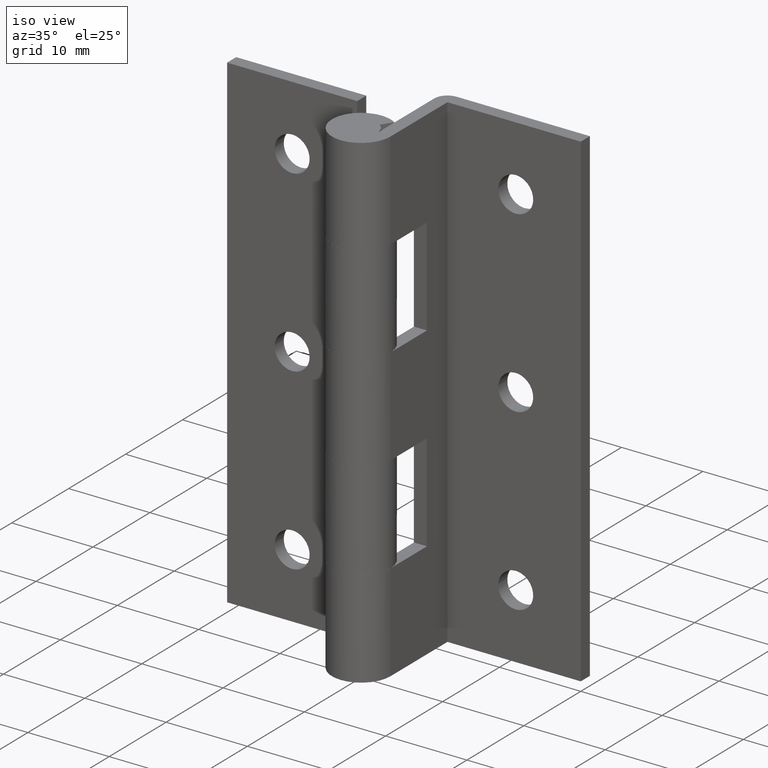
[diagram: clean part render]
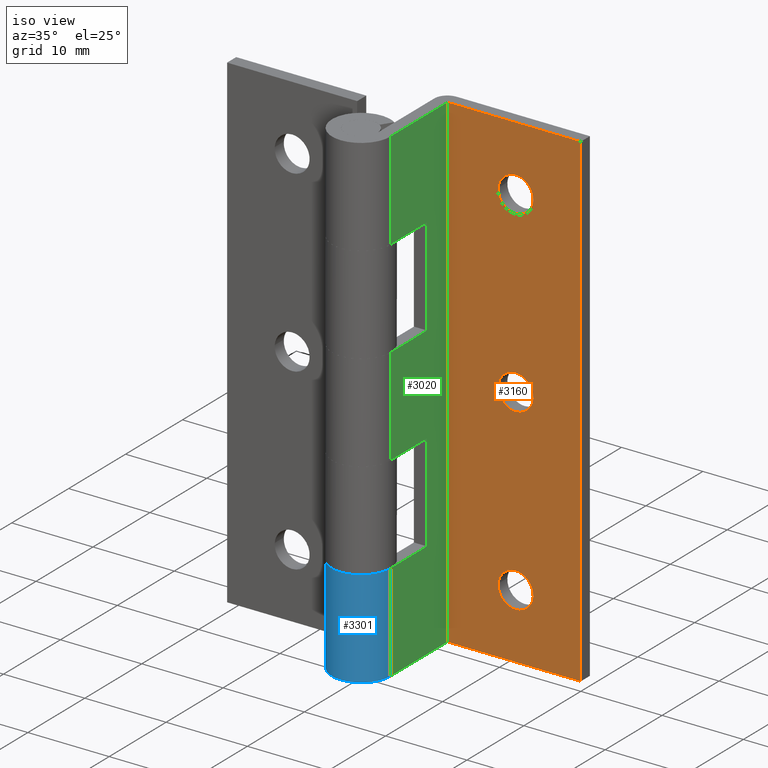
[diagram: same view with three faces highlighted in distinct colors, each labeled with its STEP entity id]
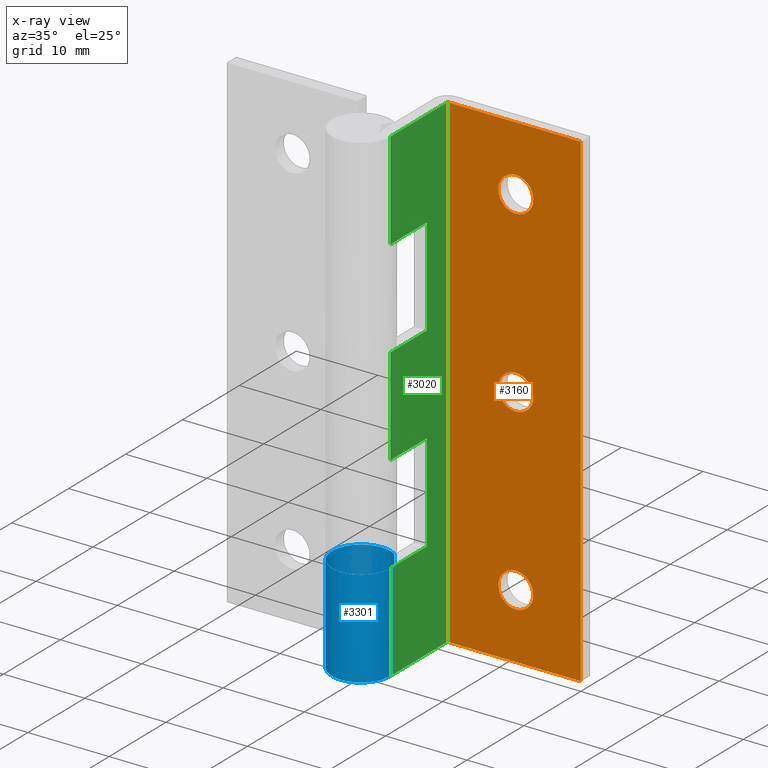
[diagram: x-ray of the same camera — body ghosted, the three highlighted faces saturated]
A machine part, iso view with three faces highlighted in distinct colors.
The next image is the same camera in x-ray (body ghosted, the three faces saturated) — at least one of them is partly hidden behind the body in this view.
Their STEP definitions:

[orange] entity #3160 — the highlighted face is a freeform B-spline surface patch.
#1842=CARTESIAN_POINT('',(12.000008000000101,10.0,54.149999999999999));
#1843=VERTEX_POINT('',#1842);
#1844=CARTESIAN_POINT('',(9.856635732478807,10.0,52.168687055877520));
#1845=VERTEX_POINT('',#1844);
#1846=CARTESIAN_POINT('',(12.000008000000101,10.0,54.149999999999999));
#1847=CARTESIAN_POINT('',(10.012568443051501,10.0,54.149999999999999));
#1848=CARTESIAN_POINT('',(9.856635732478807,9.999999999999998,52.168687055877520));
#1856=(BOUNDED_CURVE()B_SPLINE_CURVE(2,(#1846,#1847,#1848),.UNSPECIFIED.,.F.,.U.)B_SPLINE_CURVE_WITH_KNOTS((3,3),(0.0,0.236331300622745),.UNSPECIFIED.)CURVE()GEOMETRIC_REPRESENTATION_ITEM()RATIONAL_B_SPLINE_CURVE((1.0,0.723120658616938,0.969723356150901))REPRESENTATION_ITEM(''));
#1857=EDGE_CURVE('',#1843,#1845,#1856,.T.);
#1898=CARTESIAN_POINT('',(14.143380267521390,9.999999999999998,51.831312944122480));
#1899=VERTEX_POINT('',#1898);
#1905=CARTESIAN_POINT('',(14.143380267521392,9.999999999999998,51.831312944122480));
#1906=CARTESIAN_POINT('',(14.150008000000101,10.0,51.915526269870561));
#1907=CARTESIAN_POINT('',(14.150008000000099,10.0,52.0));
#1908=CARTESIAN_POINT('',(14.150008000000103,10.0,54.150000000000006));
#1909=CARTESIAN_POINT('',(12.000008000000101,10.0,54.149999999999999));
#1917=(BOUNDED_CURVE()B_SPLINE_CURVE(2,(#1905,#1906,#1907,#1908,#1909),.UNSPECIFIED.,.F.,.U.)B_SPLINE_CURVE_WITH_KNOTS((3,2,3),(0.736331300622745,0.750000000000000,1.0),.UNSPECIFIED.)CURVE()GEOMETRIC_REPRESENTATION_ITEM()RATIONAL_B_SPLINE_CURVE((0.969723356150902,0.983986122569610,1.0,0.707106781186547,1.0))REPRESENTATION_ITEM(''));
#1918=EDGE_CURVE('',#1899,#1843,#1917,.T.);
#1941=CARTESIAN_POINT('',(12.000008000000101,10.0,49.850000000000001));
#1942=VERTEX_POINT('',#1941);
#1943=CARTESIAN_POINT('',(9.856635732478807,10.0,52.168687055877527));
#1944=CARTESIAN_POINT('',(9.850008000000100,10.0,52.084473730129439));
#1945=CARTESIAN_POINT('',(9.850008000000100,10.0,52.0));
#1946=CARTESIAN_POINT('',(9.850008000000100,10.0,49.850000000000009));
#1947=CARTESIAN_POINT('',(12.000008000000101,10.0,49.850000000000001));
#1955=(BOUNDED_CURVE()B_SPLINE_CURVE(2,(#1943,#1944,#1945,#1946,#1947),.UNSPECIFIED.,.F.,.U.)B_SPLINE_CURVE_WITH_KNOTS((3,2,3),(0.236331300622745,0.250000000000000,0.500000000000000),.UNSPECIFIED.)CURVE()GEOMETRIC_REPRESENTATION_ITEM()RATIONAL_B_SPLINE_CURVE((0.969723356150902,0.983986122569610,1.0,0.707106781186547,1.0))REPRESENTATION_ITEM(''));
#1956=EDGE_CURVE('',#1845,#1942,#1955,.T.);
#1958=CARTESIAN_POINT('',(12.000008000000101,10.0,49.850000000000001));
#1959=CARTESIAN_POINT('',(13.987447556948696,10.0,49.850000000000016));
#1960=CARTESIAN_POINT('',(14.143380267521392,9.999999999999998,51.831312944122480));
#1968=(BOUNDED_CURVE()B_SPLINE_CURVE(2,(#1958,#1959,#1960),.UNSPECIFIED.,.F.,.U.)B_SPLINE_CURVE_WITH_KNOTS((3,3),(0.500000000000000,0.736331300622745),.UNSPECIFIED.)CURVE()GEOMETRIC_REPRESENTATION_ITEM()RATIONAL_B_SPLINE_CURVE((1.0,0.723120658616938,0.969723356150901))REPRESENTATION_ITEM(''));
#1969=EDGE_CURVE('',#1942,#1899,#1968,.T.);
#2024=CARTESIAN_POINT('',(12.000008000000101,10.0,32.149999999999999));
#2025=VERTEX_POINT('',#2024);
#2026=CARTESIAN_POINT('',(9.856635732478805,10.0,30.168687055877509));
#2027=VERTEX_POINT('',#2026);
#2028=CARTESIAN_POINT('',(12.000008000000101,10.0,32.149999999999999));
#2029=CARTESIAN_POINT('',(10.012568443051496,10.000000000000002,32.150000000000006));
#2030=CARTESIAN_POINT('',(9.856635732478805,10.0,30.168687055877516));
#2038=(BOUNDED_CURVE()B_SPLINE_CURVE(2,(#2028,#2029,#2030),.UNSPECIFIED.,.F.,.U.)B_SPLINE_CURVE_WITH_KNOTS((3,3),(0.0,0.236331300622746),.UNSPECIFIED.)CURVE()GEOMETRIC_REPRESENTATION_ITEM()RATIONAL_B_SPLINE_CURVE((1.0,0.723120658616937,0.969723356150902))REPRESENTATION_ITEM(''));
#2039=EDGE_CURVE('',#2025,#2027,#2038,.T.);
#2080=CARTESIAN_POINT('',(14.143380267521390,10.0,29.831312944122480));
#2081=VERTEX_POINT('',#2080);
#2087=CARTESIAN_POINT('',(14.143380267521392,10.0,29.831312944122487));
#2088=CARTESIAN_POINT('',(14.150008000000101,10.0,29.915526269870572));
#2089=CARTESIAN_POINT('',(14.150008000000099,10.0,30.0));
#2090=CARTESIAN_POINT('',(14.150008000000103,10.0,32.149999999999999));
#2091=CARTESIAN_POINT('',(12.000008000000101,10.0,32.149999999999999));
#2099=(BOUNDED_CURVE()B_SPLINE_CURVE(2,(#2087,#2088,#2089,#2090,#2091),.UNSPECIFIED.,.F.,.U.)B_SPLINE_CURVE_WITH_KNOTS((3,2,3),(0.736331300622745,0.750000000000000,1.0),.UNSPECIFIED.)CURVE()GEOMETRIC_REPRESENTATION_ITEM()RATIONAL_B_SPLINE_CURVE((0.969723356150902,0.983986122569610,1.0,0.707106781186547,1.0))REPRESENTATION_ITEM(''));
#2100=EDGE_CURVE('',#2081,#2025,#2099,.T.);
#2123=CARTESIAN_POINT('',(12.000008000000101,10.0,27.850000000000001));
#2124=VERTEX_POINT('',#2123);
#2125=CARTESIAN_POINT('',(9.856635732478805,10.000000000000002,30.168687055877513));
#2126=CARTESIAN_POINT('',(9.850008000000102,9.999999999999998,30.084473730129428));
#2127=CARTESIAN_POINT('',(9.850008000000100,10.0,30.0));
#2128=CARTESIAN_POINT('',(9.850008000000100,10.0,27.850000000000005));
#2129=CARTESIAN_POINT('',(12.000008000000101,10.0,27.850000000000001));
#2137=(BOUNDED_CURVE()B_SPLINE_CURVE(2,(#2125,#2126,#2127,#2128,#2129),.UNSPECIFIED.,.F.,.U.)B_SPLINE_CURVE_WITH_KNOTS((3,2,3),(0.236331300622746,0.250000000000000,0.500000000000000),.UNSPECIFIED.)CURVE()GEOMETRIC_REPRESENTATION_ITEM()RATIONAL_B_SPLINE_CURVE((0.969723356150902,0.983986122569610,1.0,0.707106781186547,1.0))REPRESENTATION_ITEM(''));
#2138=EDGE_CURVE('',#2027,#2124,#2137,.T.);
#2140=CARTESIAN_POINT('',(12.000008000000101,10.0,27.850000000000001));
#2141=CARTESIAN_POINT('',(13.987447556948696,10.0,27.849999999999998));
#2142=CARTESIAN_POINT('',(14.143380267521392,10.0,29.831312944122477));
#2150=(BOUNDED_CURVE()B_SPLINE_CURVE(2,(#2140,#2141,#2142),.UNSPECIFIED.,.F.,.U.)B_SPLINE_CURVE_WITH_KNOTS((3,3),(0.500000000000000,0.736331300622745),.UNSPECIFIED.)CURVE()GEOMETRIC_REPRESENTATION_ITEM()RATIONAL_B_SPLINE_CURVE((1.0,0.723120658616938,0.969723356150901))REPRESENTATION_ITEM(''));
#2151=EDGE_CURVE('',#2124,#2081,#2150,.T.);
#2206=CARTESIAN_POINT('',(12.000008000000101,10.0,10.150000000000000));
#2207=VERTEX_POINT('',#2206);
#2208=CARTESIAN_POINT('',(9.856635732478807,10.0,8.168687055877516));
#2209=VERTEX_POINT('',#2208);
#2210=CARTESIAN_POINT('',(12.000008000000101,10.0,10.150000000000000));
#2211=CARTESIAN_POINT('',(10.012568443051496,10.0,10.149999999999997));
#2212=CARTESIAN_POINT('',(9.856635732478807,10.0,8.168687055877516));
#2220=(BOUNDED_CURVE()B_SPLINE_CURVE(2,(#2210,#2211,#2212),.UNSPECIFIED.,.F.,.U.)B_SPLINE_CURVE_WITH_KNOTS((3,3),(0.0,0.236331300622746),.UNSPECIFIED.)CURVE()GEOMETRIC_REPRESENTATION_ITEM()RATIONAL_B_SPLINE_CURVE((1.0,0.723120658616937,0.969723356150902))REPRESENTATION_ITEM(''));
#2221=EDGE_CURVE('',#2207,#2209,#2220,.T.);
#2262=CARTESIAN_POINT('',(14.143380267521390,9.999999999999998,7.831312944122485));
#2263=VERTEX_POINT('',#2262);
#2269=CARTESIAN_POINT('',(14.143380267521394,9.999999999999998,7.831312944122485));
#2270=CARTESIAN_POINT('',(14.150008000000096,10.0,7.915526269870571));
#2271=CARTESIAN_POINT('',(14.150008000000099,10.0,8.0));
#2272=CARTESIAN_POINT('',(14.150008000000103,10.0,10.149999999999999));
#2273=CARTESIAN_POINT('',(12.000008000000101,10.0,10.150000000000000));
#2281=(BOUNDED_CURVE()B_SPLINE_CURVE(2,(#2269,#2270,#2271,#2272,#2273),.UNSPECIFIED.,.F.,.U.)B_SPLINE_CURVE_WITH_KNOTS((3,2,3),(0.736331300622746,0.750000000000000,1.0),.UNSPECIFIED.)CURVE()GEOMETRIC_REPRESENTATION_ITEM()RATIONAL_B_SPLINE_CURVE((0.969723356150902,0.983986122569610,1.0,0.707106781186547,1.0))REPRESENTATION_ITEM(''));
#2282=EDGE_CURVE('',#2263,#2207,#2281,.T.);
#2305=CARTESIAN_POINT('',(12.000008000000101,10.0,5.850000000000001));
#2306=VERTEX_POINT('',#2305);
#2307=CARTESIAN_POINT('',(9.856635732478807,10.0,8.168687055877516));
#2308=CARTESIAN_POINT('',(9.850008000000099,10.0,8.084473730129430));
#2309=CARTESIAN_POINT('',(9.850008000000100,10.0,8.0));
#2310=CARTESIAN_POINT('',(9.850008000000100,10.0,5.850000000000001));
#2311=CARTESIAN_POINT('',(12.000008000000101,10.0,5.850000000000001));
#2319=(BOUNDED_CURVE()B_SPLINE_CURVE(2,(#2307,#2308,#2309,#2310,#2311),.UNSPECIFIED.,.F.,.U.)B_SPLINE_CURVE_WITH_KNOTS((3,2,3),(0.236331300622746,0.250000000000000,0.500000000000000),.UNSPECIFIED.)CURVE()GEOMETRIC_REPRESENTATION_ITEM()RATIONAL_B_SPLINE_CURVE((0.969723356150902,0.983986122569610,1.0,0.707106781186547,1.0))REPRESENTATION_ITEM(''));
#2320=EDGE_CURVE('',#2209,#2306,#2319,.T.);
#2322=CARTESIAN_POINT('',(12.000008000000101,10.0,5.850000000000001));
#2323=CARTESIAN_POINT('',(13.987447556948696,10.0,5.850000000000000));
#2324=CARTESIAN_POINT('',(14.143380267521392,9.999999999999998,7.831312944122485));
#2332=(BOUNDED_CURVE()B_SPLINE_CURVE(2,(#2322,#2323,#2324),.UNSPECIFIED.,.F.,.U.)B_SPLINE_CURVE_WITH_KNOTS((3,3),(0.500000000000000,0.736331300622745),.UNSPECIFIED.)CURVE()GEOMETRIC_REPRESENTATION_ITEM()RATIONAL_B_SPLINE_CURVE((1.0,0.723120658616938,0.969723356150901))REPRESENTATION_ITEM(''));
#2333=EDGE_CURVE('',#2306,#2263,#2332,.T.);
#2803=CARTESIAN_POINT('',(20.000008000000101,10.0,0.0));
#2804=VERTEX_POINT('',#2803);
#2810=CARTESIAN_POINT('',(3.599999000000095,10.0,0.0));
#2811=VERTEX_POINT('',#2810);
#2812=CARTESIAN_POINT('',(3.599999000000095,10.0,0.0));
#2813=CARTESIAN_POINT('',(20.000008000000101,10.0,0.0));
#2814=QUASI_UNIFORM_CURVE('',1,(#2812,#2813),.UNSPECIFIED.,.F.,.U.);
#2815=EDGE_CURVE('',#2811,#2804,#2814,.T.);
#2943=CARTESIAN_POINT('',(3.599999000000095,10.0,60.0));
#2944=VERTEX_POINT('',#2943);
#2950=CARTESIAN_POINT('',(20.000008000000101,10.0,60.0));
#2951=VERTEX_POINT('',#2950);
#2952=CARTESIAN_POINT('',(3.599999000000095,10.0,60.0));
#2953=CARTESIAN_POINT('',(20.000008000000101,10.0,60.0));
#2954=QUASI_UNIFORM_CURVE('',1,(#2952,#2953),.UNSPECIFIED.,.F.,.U.);
#2955=EDGE_CURVE('',#2944,#2951,#2954,.T.);
#2977=CARTESIAN_POINT('',(20.000008000000101,10.0,60.0));
#2978=CARTESIAN_POINT('',(20.000008000000101,10.0,0.0));
#2979=QUASI_UNIFORM_CURVE('',1,(#2977,#2978),.UNSPECIFIED.,.F.,.U.);
#2980=EDGE_CURVE('',#2951,#2804,#2979,.T.);
#2998=CARTESIAN_POINT('',(3.599999000000095,10.0,60.0));
#2999=CARTESIAN_POINT('',(3.599999000000095,10.0,0.0));
#3000=QUASI_UNIFORM_CURVE('',1,(#2998,#2999),.UNSPECIFIED.,.F.,.U.);
#3001=EDGE_CURVE('',#2944,#2811,#3000,.T.);
#3131=CARTESIAN_POINT('',(2.780818486877293,10.0,-2.996999883708359));
#3132=CARTESIAN_POINT('',(2.780818486877293,10.0,62.997001493033771));
#3133=CARTESIAN_POINT('',(20.819187633357860,10.0,-2.996999883708359));
#3134=CARTESIAN_POINT('',(20.819187633357860,10.0,62.997001493033771));
#3135=B_SPLINE_SURFACE_WITH_KNOTS('',1,1,((#3131,#3133),(#3132,#3134)),.UNSPECIFIED.,.F.,.F.,.U.,(2,2),(2,2),(0.0,65.994001376742133),(0.0,18.038369146480569),.UNSPECIFIED.);
#3136=ORIENTED_EDGE('',*,*,#2815,.T.);
#3137=ORIENTED_EDGE('',*,*,#2980,.F.);
#3138=ORIENTED_EDGE('',*,*,#2955,.F.);
#3139=ORIENTED_EDGE('',*,*,#3001,.T.);
#3140=EDGE_LOOP('',(#3136,#3137,#3138,#3139));
#3141=FACE_OUTER_BOUND('',#3140,.T.);
#3142=ORIENTED_EDGE('',*,*,#2333,.F.);
#3143=ORIENTED_EDGE('',*,*,#2320,.F.);
#3144=ORIENTED_EDGE('',*,*,#2221,.F.);
#3145=ORIENTED_EDGE('',*,*,#2282,.F.);
#3146=EDGE_LOOP('',(#3142,#3143,#3144,#3145));
#3147=FACE_BOUND('',#3146,.T.);
#3148=ORIENTED_EDGE('',*,*,#2151,.F.);
#3149=ORIENTED_EDGE('',*,*,#2138,.F.);
#3150=ORIENTED_EDGE('',*,*,#2039,.F.);
#3151=ORIENTED_EDGE('',*,*,#2100,.F.);
#3152=EDGE_LOOP('',(#3148,#3149,#3150,#3151));
#3153=FACE_BOUND('',#3152,.T.);
#3154=ORIENTED_EDGE('',*,*,#1969,.F.);
#3155=ORIENTED_EDGE('',*,*,#1956,.F.);
#3156=ORIENTED_EDGE('',*,*,#1857,.F.);
#3157=ORIENTED_EDGE('',*,*,#1918,.F.);
#3158=EDGE_LOOP('',(#3154,#3155,#3156,#3157));
#3159=FACE_BOUND('',#3158,.T.);
#3160=ADVANCED_FACE('',(#3141,#3147,#3153,#3159),#3135,.F.);

[blue] entity #3301 — the highlighted face is a freeform B-spline surface patch.
#2453=CARTESIAN_POINT('',(1.950008000000105,3.026130995171160,12.000000000000121));
#2454=VERTEX_POINT('',#2453);
#2455=CARTESIAN_POINT('',(3.599999000000095,0.0,12.0));
#2456=VERTEX_POINT('',#2455);
#2457=CARTESIAN_POINT('',(1.950008000000104,3.026130995171160,12.000000000000121));
#2458=CARTESIAN_POINT('',(-0.401504006083346,4.541421387846202,12.000000000000121));
#2459=CARTESIAN_POINT('',(-2.450687649178759,2.637068456859376,12.000000000000121));
#2460=CARTESIAN_POINT('',(-4.499871292274169,0.732715525872551,12.000000000000121));
#2461=CARTESIAN_POINT('',(-3.160698403834220,-1.723364616092547,12.000000000000121));
#2462=CARTESIAN_POINT('',(-1.821525515394272,-4.179444758057644,12.000000000000121));
#2463=CARTESIAN_POINT('',(0.889237242302862,-3.488446233912972,12.000000000000121));
#2464=CARTESIAN_POINT('',(3.600000000000000,-2.797447709768299,12.000000000000121));
#2465=CARTESIAN_POINT('',(3.599999000000095,0.0,12.0));
#2473=(BOUNDED_CURVE()B_SPLINE_CURVE(2,(#2457,#2458,#2459,#2460,#2461,#2462,#2463,#2464,#2465),.UNSPECIFIED.,.F.,.U.)B_SPLINE_CURVE_WITH_KNOTS((3,2,2,2,3),(0.0,0.250000000000000,0.500000000000000,0.750000000000000,1.0),.UNSPECIFIED.)CURVE()GEOMETRIC_REPRESENTATION_ITEM()RATIONAL_B_SPLINE_CURVE((1.0,0.789623437178801,1.0,0.789623437178801,1.0,0.789623437178801,1.0,0.789623437178801,1.0))REPRESENTATION_ITEM(''));
#2474=EDGE_CURVE('',#2454,#2456,#2473,.T.);
#2817=CARTESIAN_POINT('',(3.600000000000000,0.0,0.0));
#2818=VERTEX_POINT('',#2817);
#2824=CARTESIAN_POINT('',(1.950008000000110,3.026130995171160,0.0));
#2825=VERTEX_POINT('',#2824);
#2826=CARTESIAN_POINT('',(3.600000000000000,0.0,0.0));
#2827=CARTESIAN_POINT('',(3.599999999999999,-2.797447709768299,0.0));
#2828=CARTESIAN_POINT('',(0.889237242302863,-3.488446233912972,0.0));
#2829=CARTESIAN_POINT('',(-1.821525515394274,-4.179444758057644,0.0));
#2830=CARTESIAN_POINT('',(-3.160698403834221,-1.723364616092545,0.0));
#2831=CARTESIAN_POINT('',(-4.499871292274170,0.732715525872555,0.0));
#2832=CARTESIAN_POINT('',(-2.450687649178755,2.637068456859379,0.0));
#2833=CARTESIAN_POINT('',(-0.401504006083340,4.541421387846202,0.0));
#2834=CARTESIAN_POINT('',(1.950008000000109,3.026130995171157,0.0));
#2842=(BOUNDED_CURVE()B_SPLINE_CURVE(2,(#2826,#2827,#2828,#2829,#2830,#2831,#2832,#2833,#2834),.UNSPECIFIED.,.F.,.U.)B_SPLINE_CURVE_WITH_KNOTS((3,2,2,2,3),(0.0,0.250000000000000,0.500000000000000,0.750000000000000,1.0),.UNSPECIFIED.)CURVE()GEOMETRIC_REPRESENTATION_ITEM()RATIONAL_B_SPLINE_CURVE((1.0,0.789623437178801,1.0,0.789623437178801,1.0,0.789623437178801,1.0,0.789623437178801,1.0))REPRESENTATION_ITEM(''));
#2843=EDGE_CURVE('',#2818,#2825,#2842,.T.);
#2992=CARTESIAN_POINT('',(3.599999000000095,0.0,12.0));
#2993=CARTESIAN_POINT('',(3.600000000000000,0.0,0.0));
#2994=QUASI_UNIFORM_CURVE('',1,(#2992,#2993),.UNSPECIFIED.,.F.,.U.);
#2995=EDGE_CURVE('',#2456,#2818,#2994,.T.);
#3269=CARTESIAN_POINT('',(2.080150004567116,2.938192634681977,12.300000000000120));
#3270=CARTESIAN_POINT('',(2.080150004567116,2.938192634681977,-0.307500000000003));
#3271=CARTESIAN_POINT('',(-1.591689673951218,5.537742178807203,12.300000000000123));
#3272=CARTESIAN_POINT('',(-1.591689673951218,5.537742178807203,-0.307500000000003));
#3273=CARTESIAN_POINT('',(-3.322816156680219,1.385241058049063,12.300000000000120));
#3274=CARTESIAN_POINT('',(-3.322816156680219,1.385241058049063,-0.307500000000003));
#3275=CARTESIAN_POINT('',(-5.053942639409221,-2.767260062709075,12.300000000000123));
#3276=CARTESIAN_POINT('',(-5.053942639409221,-2.767260062709075,-0.307500000000003));
#3277=CARTESIAN_POINT('',(-0.622904894034769,-3.545700141437164,12.300000000000120));
#3278=CARTESIAN_POINT('',(-0.622904894034769,-3.545700141437164,-0.307500000000003));
#3279=CARTESIAN_POINT('',(3.808132851339682,-4.324140220165252,12.300000000000123));
#3280=CARTESIAN_POINT('',(3.808132851339682,-4.324140220165252,-0.307500000000003));
#3281=CARTESIAN_POINT('',(3.595995613007931,0.169751439545324,12.300000000000120));
#3282=CARTESIAN_POINT('',(3.595995613007931,0.169751439545324,-0.307500000000003));
#3290=(BOUNDED_SURFACE()B_SPLINE_SURFACE(1,2,((#3269,#3271,#3273,#3275,#3277,#3279,#3281),(#3270,#3272,#3274,#3276,#3278,#3280,#3282)),.UNSPECIFIED.,.F.,.F.,.U.)B_SPLINE_SURFACE_WITH_KNOTS((2,2),(3,2,2,3),(0.0,12.607500000000130),(0.0,6.919936892402056,13.839873784804110,20.759810677206168),.UNSPECIFIED.)GEOMETRIC_REPRESENTATION_ITEM()RATIONAL_B_SPLINE_SURFACE(((1.0,0.624788514543960,1.0,0.624788514543960,1.0,0.624788514543960,1.0),(1.0,0.624788514543960,1.0,0.624788514543960,1.0,0.624788514543960,1.0)))REPRESENTATION_ITEM('')SURFACE());
#3291=ORIENTED_EDGE('',*,*,#2474,.F.);
#3292=CARTESIAN_POINT('',(1.950008000000105,3.026130995171160,12.000000000000121));
#3293=CARTESIAN_POINT('',(1.950008000000110,3.026130995171160,0.0));
#3294=QUASI_UNIFORM_CURVE('',1,(#3292,#3293),.UNSPECIFIED.,.F.,.U.);
#3295=EDGE_CURVE('',#2454,#2825,#3294,.T.);
#3296=ORIENTED_EDGE('',*,*,#3295,.T.);
#3297=ORIENTED_EDGE('',*,*,#2843,.F.);
#3298=ORIENTED_EDGE('',*,*,#2995,.F.);
#3299=EDGE_LOOP('',(#3291,#3296,#3297,#3298));
#3300=FACE_OUTER_BOUND('',#3299,.T.);
#3301=ADVANCED_FACE('',(#3300),#3290,.T.);

[green] entity #3020 — the highlighted face is a freeform B-spline surface patch.
#2377=CARTESIAN_POINT('',(3.599999000000095,6.399994000000000,24.0));
#2378=VERTEX_POINT('',#2377);
#2384=CARTESIAN_POINT('',(3.599999000000095,0.0,24.0));
#2385=VERTEX_POINT('',#2384);
#2386=CARTESIAN_POINT('',(3.599999000000095,0.0,24.0));
#2387=CARTESIAN_POINT('',(3.599999000000095,6.399994000000000,24.0));
#2388=QUASI_UNIFORM_CURVE('',1,(#2386,#2387),.UNSPECIFIED.,.F.,.U.);
#2389=EDGE_CURVE('',#2385,#2378,#2388,.T.);
#2455=CARTESIAN_POINT('',(3.599999000000095,0.0,12.0));
#2456=VERTEX_POINT('',#2455);
#2476=CARTESIAN_POINT('',(3.599999000000075,6.399994000000000,12.0));
#2477=VERTEX_POINT('',#2476);
#2478=CARTESIAN_POINT('',(3.599999000000075,6.399994000000000,12.0));
#2479=CARTESIAN_POINT('',(3.599999000000095,0.0,12.0));
#2480=QUASI_UNIFORM_CURVE('',1,(#2478,#2479),.UNSPECIFIED.,.F.,.U.);
#2481=EDGE_CURVE('',#2477,#2456,#2480,.T.);
#2532=CARTESIAN_POINT('',(3.599999000000095,6.399994000000000,24.0));
#2533=CARTESIAN_POINT('',(3.599999000000075,6.399994000000000,12.0));
#2534=QUASI_UNIFORM_CURVE('',1,(#2532,#2533),.UNSPECIFIED.,.F.,.U.);
#2535=EDGE_CURVE('',#2378,#2477,#2534,.T.);
#2553=CARTESIAN_POINT('',(3.600000000000000,0.0,36.0));
#2554=VERTEX_POINT('',#2553);
#2574=CARTESIAN_POINT('',(3.599999000000075,6.399994000000000,36.0));
#2575=VERTEX_POINT('',#2574);
#2576=CARTESIAN_POINT('',(3.600000000000000,0.0,36.0));
#2577=CARTESIAN_POINT('',(3.599999000000075,6.399994000000000,36.0));
#2578=QUASI_UNIFORM_CURVE('',1,(#2576,#2577),.UNSPECIFIED.,.F.,.U.);
#2579=EDGE_CURVE('',#2554,#2575,#2578,.T.);
#2631=CARTESIAN_POINT('',(3.599999000000075,6.399994000000000,48.0));
#2632=VERTEX_POINT('',#2631);
#2638=CARTESIAN_POINT('',(3.599999000000095,0.0,48.0));
#2639=VERTEX_POINT('',#2638);
#2640=CARTESIAN_POINT('',(3.599999000000075,6.399994000000000,48.0));
#2641=CARTESIAN_POINT('',(3.599999000000095,0.0,48.0));
#2642=QUASI_UNIFORM_CURVE('',1,(#2640,#2641),.UNSPECIFIED.,.F.,.U.);
#2643=EDGE_CURVE('',#2632,#2639,#2642,.T.);
#2708=CARTESIAN_POINT('',(3.599999000000075,6.399994000000000,36.0));
#2709=CARTESIAN_POINT('',(3.599999000000075,6.399994000000000,48.0));
#2710=QUASI_UNIFORM_CURVE('',1,(#2708,#2709),.UNSPECIFIED.,.F.,.U.);
#2711=EDGE_CURVE('',#2575,#2632,#2710,.T.);
#2810=CARTESIAN_POINT('',(3.599999000000095,10.0,0.0));
#2811=VERTEX_POINT('',#2810);
#2817=CARTESIAN_POINT('',(3.600000000000000,0.0,0.0));
#2818=VERTEX_POINT('',#2817);
#2819=CARTESIAN_POINT('',(3.600000000000000,0.0,0.0));
#2820=CARTESIAN_POINT('',(3.599999000000095,10.0,0.0));
#2821=QUASI_UNIFORM_CURVE('',1,(#2819,#2820),.UNSPECIFIED.,.F.,.U.);
#2822=EDGE_CURVE('',#2818,#2811,#2821,.T.);
#2922=CARTESIAN_POINT('',(3.600000000000000,0.0,60.0));
#2923=VERTEX_POINT('',#2922);
#2943=CARTESIAN_POINT('',(3.599999000000095,10.0,60.0));
#2944=VERTEX_POINT('',#2943);
#2945=CARTESIAN_POINT('',(3.600000000000000,0.0,60.0));
#2946=CARTESIAN_POINT('',(3.599999000000095,10.0,60.0));
#2947=QUASI_UNIFORM_CURVE('',1,(#2945,#2946),.UNSPECIFIED.,.F.,.U.);
#2948=EDGE_CURVE('',#2923,#2944,#2947,.T.);
#2985=CARTESIAN_POINT('',(3.599999000000095,-0.499499980618059,-2.996999883708359));
#2986=CARTESIAN_POINT('',(3.599999000000095,-0.499499980618059,62.997001493033771));
#2987=CARTESIAN_POINT('',(3.599999000000095,10.499500248838959,-2.996999883708359));
#2988=CARTESIAN_POINT('',(3.599999000000095,10.499500248838959,62.997001493033771));
#2989=B_SPLINE_SURFACE_WITH_KNOTS('',1,1,((#2985,#2987),(#2986,#2988)),.UNSPECIFIED.,.F.,.F.,.U.,(2,2),(2,2),(0.0,65.994001376742133),(0.0,10.999000229457019),.UNSPECIFIED.);
#2990=ORIENTED_EDGE('',*,*,#2535,.T.);
#2991=ORIENTED_EDGE('',*,*,#2481,.T.);
#2992=CARTESIAN_POINT('',(3.599999000000095,0.0,12.0));
#2993=CARTESIAN_POINT('',(3.600000000000000,0.0,0.0));
#2994=QUASI_UNIFORM_CURVE('',1,(#2992,#2993),.UNSPECIFIED.,.F.,.U.);
#2995=EDGE_CURVE('',#2456,#2818,#2994,.T.);
#2996=ORIENTED_EDGE('',*,*,#2995,.T.);
#2997=ORIENTED_EDGE('',*,*,#2822,.T.);
#2998=CARTESIAN_POINT('',(3.599999000000095,10.0,60.0));
#2999=CARTESIAN_POINT('',(3.599999000000095,10.0,0.0));
#3000=QUASI_UNIFORM_CURVE('',1,(#2998,#2999),.UNSPECIFIED.,.F.,.U.);
#3001=EDGE_CURVE('',#2944,#2811,#3000,.T.);
#3002=ORIENTED_EDGE('',*,*,#3001,.F.);
#3003=ORIENTED_EDGE('',*,*,#2948,.F.);
#3004=CARTESIAN_POINT('',(3.600000000000000,0.0,60.0));
#3005=CARTESIAN_POINT('',(3.599999000000095,0.0,48.0));
#3006=QUASI_UNIFORM_CURVE('',1,(#3004,#3005),.UNSPECIFIED.,.F.,.U.);
#3007=EDGE_CURVE('',#2923,#2639,#3006,.T.);
#3008=ORIENTED_EDGE('',*,*,#3007,.T.);
#3009=ORIENTED_EDGE('',*,*,#2643,.F.);
#3010=ORIENTED_EDGE('',*,*,#2711,.F.);
#3011=ORIENTED_EDGE('',*,*,#2579,.F.);
#3012=CARTESIAN_POINT('',(3.600000000000000,0.0,36.0));
#3013=CARTESIAN_POINT('',(3.599999000000095,0.0,24.0));
#3014=QUASI_UNIFORM_CURVE('',1,(#3012,#3013),.UNSPECIFIED.,.F.,.U.);
#3015=EDGE_CURVE('',#2554,#2385,#3014,.T.);
#3016=ORIENTED_EDGE('',*,*,#3015,.T.);
#3017=ORIENTED_EDGE('',*,*,#2389,.T.);
#3018=EDGE_LOOP('',(#2990,#2991,#2996,#2997,#3002,#3003,#3008,#3009,#3010,#3011,#3016,#3017));
#3019=FACE_OUTER_BOUND('',#3018,.T.);
#3020=ADVANCED_FACE('',(#3019),#2989,.F.);